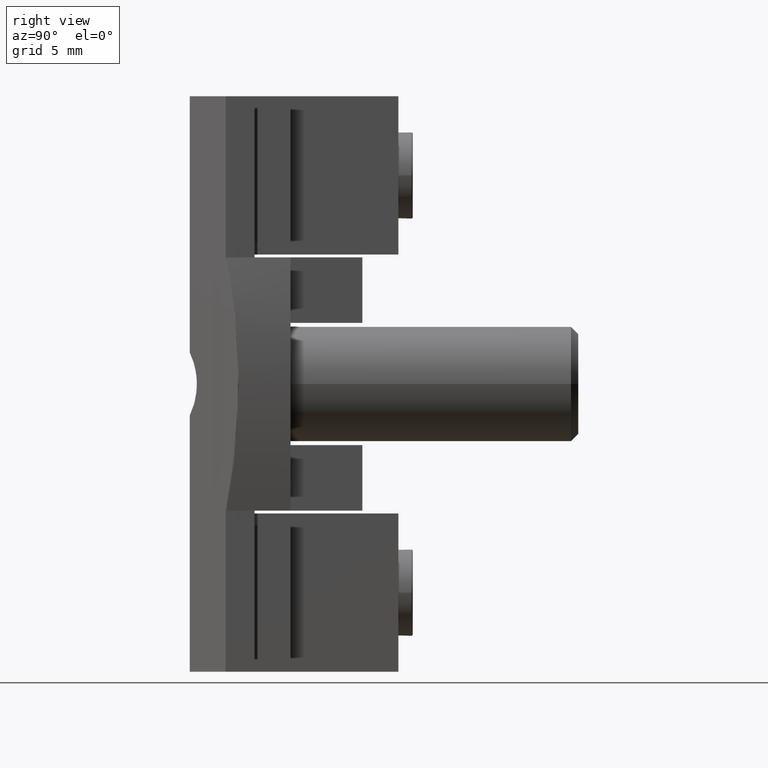
[diagram: clean part render]
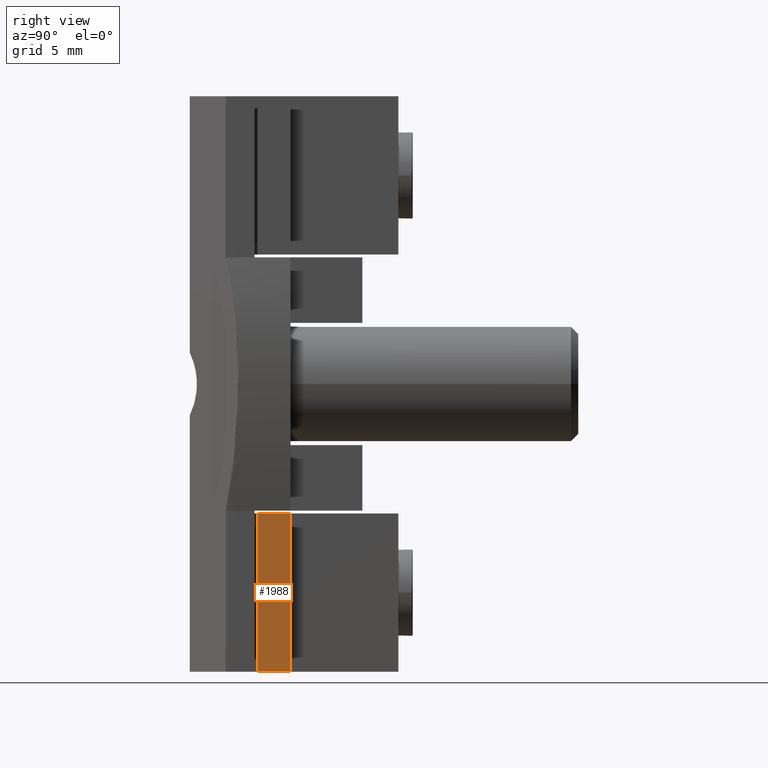
[diagram: same view with one face highlighted and labeled with its STEP entity id]
A machine part, right view. The second image highlights one B-rep face of the part: STEP entity #1988.
In plain terms, the highlighted planar face has unit normal (1, 0, 0).
Its self-contained STEP definition (entity closure, byte-faithful):
#123=PLANE('',#2174);
#234=FACE_OUTER_BOUND('',#352,.T.);
#352=EDGE_LOOP('',(#1730,#1731,#1732,#1733));
#564=LINE('',#3295,#783);
#582=LINE('',#3329,#801);
#585=LINE('',#3336,#804);
#586=LINE('',#3337,#805);
#783=VECTOR('',#2632,10.);
#801=VECTOR('',#2660,10.);
#804=VECTOR('',#2667,10.);
#805=VECTOR('',#2668,10.);
#997=VERTEX_POINT('',#3292);
#998=VERTEX_POINT('',#3294);
#1009=VERTEX_POINT('',#3327);
#1011=VERTEX_POINT('',#3335);
#1250=EDGE_CURVE('',#998,#997,#564,.T.);
#1268=EDGE_CURVE('',#997,#1009,#582,.T.);
#1271=EDGE_CURVE('',#1011,#1009,#585,.T.);
#1272=EDGE_CURVE('',#998,#1011,#586,.T.);
#1730=ORIENTED_EDGE('',*,*,#1250,.T.);
#1731=ORIENTED_EDGE('',*,*,#1268,.T.);
#1732=ORIENTED_EDGE('',*,*,#1271,.F.);
#1733=ORIENTED_EDGE('',*,*,#1272,.F.);
#1988=ADVANCED_FACE('',(#234),#123,.T.);
#2174=AXIS2_PLACEMENT_3D('',#3334,#2665,#2666);
#2632=DIRECTION('',(0.,-1.,0.));
#2660=DIRECTION('',(0.,0.,-1.));
#2665=DIRECTION('center_axis',(1.,0.,0.));
#2666=DIRECTION('ref_axis',(0.,1.,0.));
#2667=DIRECTION('',(0.,-1.,0.));
#2668=DIRECTION('',(0.,0.,-1.));
#3292=CARTESIAN_POINT('',(8.,0.199999999999999,-9.));
#3294=CARTESIAN_POINT('',(8.,2.5,-9.));
#3295=CARTESIAN_POINT('',(8.,0.100000000000001,-9.));
#3327=CARTESIAN_POINT('',(8.,0.199999999999999,-20.));
#3329=CARTESIAN_POINT('',(8.,0.199999999999999,0.));
#3334=CARTESIAN_POINT('Origin',(8.,0.199999999999999,0.));
#3335=CARTESIAN_POINT('',(8.,2.5,-20.));
#3336=CARTESIAN_POINT('',(8.,2.5,-20.));
#3337=CARTESIAN_POINT('',(8.,2.5,0.));